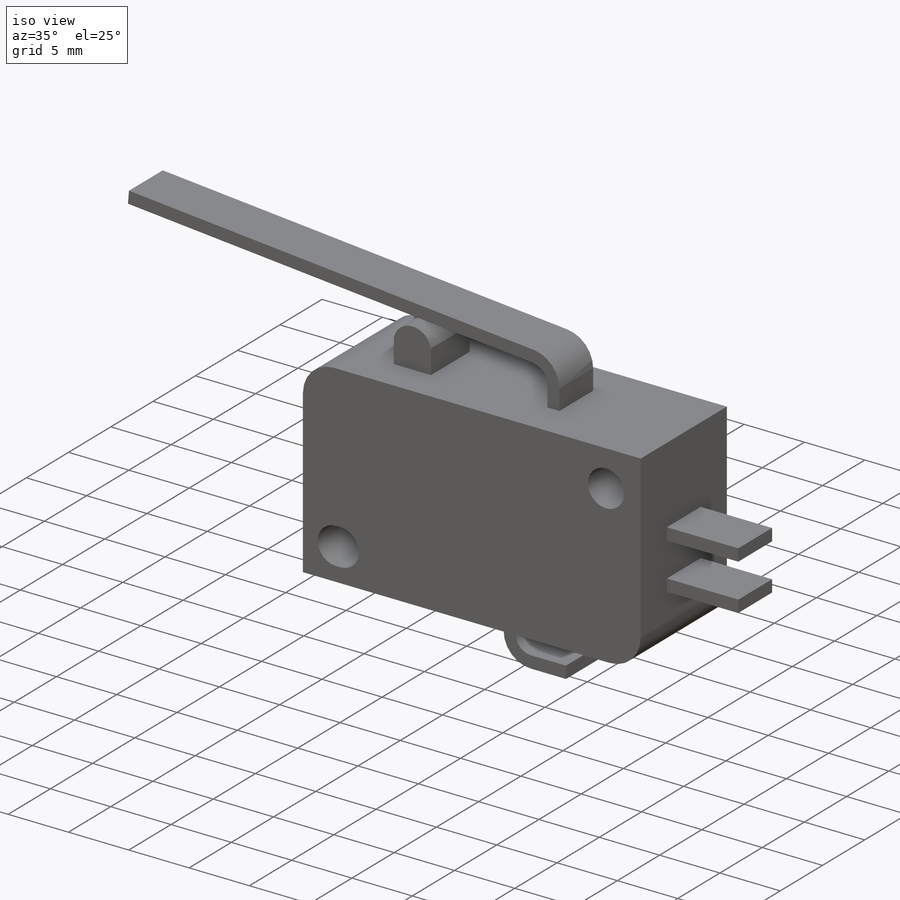
[diagram: iso view]
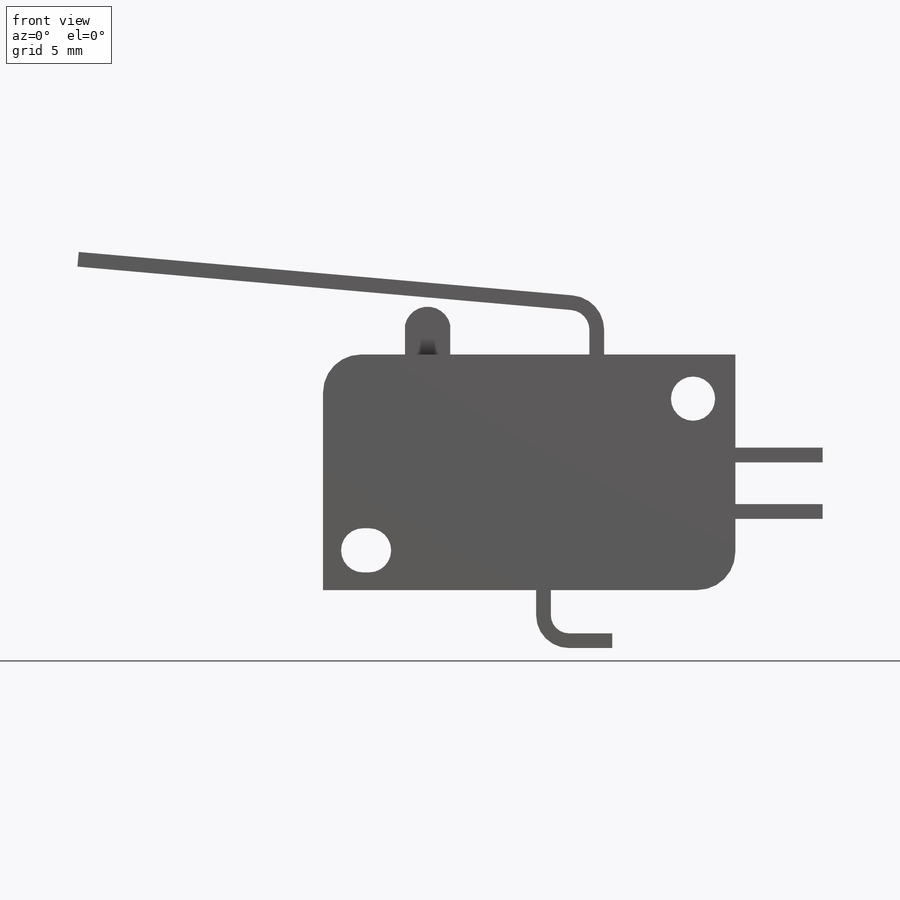
[diagram: front view]
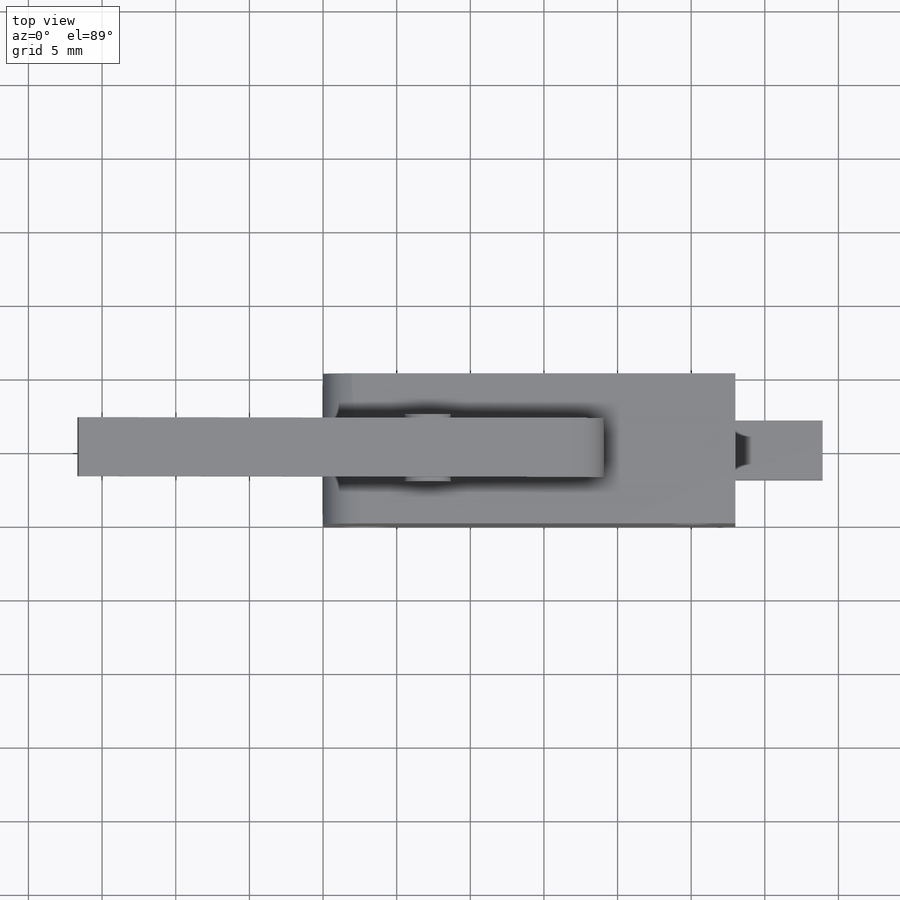
[diagram: top view]
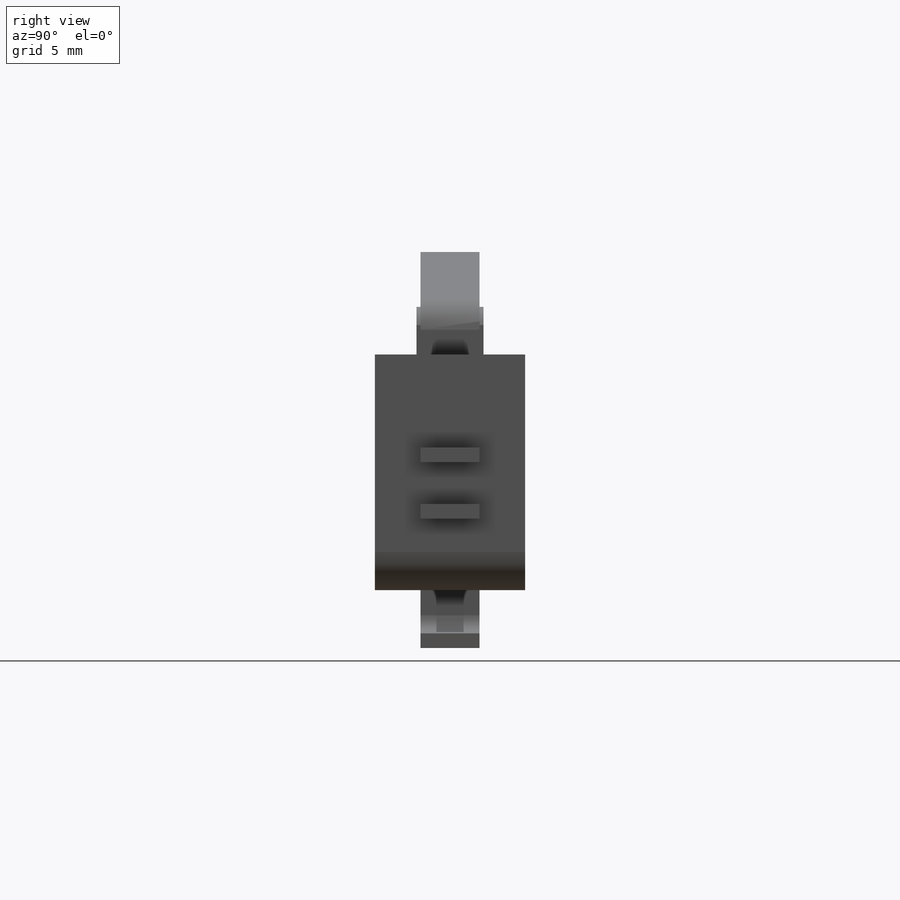
[diagram: right view]
SOLIDWORKS PART (.sldprt)
format: sldprt  version: not decoded by parser v0  size: 208,896 bytes
history: native  units: mm
features: sketch x5, extrude x3, material x1, cut_extrude x1 (+13 scaffold rows collapsed)
feature tree (23):
  scaffold x13  (default folders/planes/origin — collapsed)
  material  "Material <not specified>"
  sketch  "Sketch1"  dims[D1=28.0mm D2=16.0mm]
  extrude  "Boss-Extrude1"  Depth=10.2mm
  sketch  "Sketch2"  dims[c1.D1=3.0mm c1.D2=22.2mm c1.D3=10.3mm c2.D1=~1.354117mm c2.D2=22.2mm c2.D3=10.3mm c2.D4=0.4mm]
  cut_extrude  "Cut-Extrude1"  [1 undecoded]
  sketch  "Sketch3"  dims[c1.D1=~5.66893mm c1.D2=~3.327914mm c2.D1=~25.418208mm]
  extrude  "Boss-Extrude2"  Depth=2mm
  sketch  "Sketch4"  dims[D1=~0.095894mm]
  extrude  "Boss-Extrude3"  [1 undecoded]
  sketch  "Sketch5"  dims[c1.D1=50.6mm c1.D2=24.9mm c2.D1=4.0mm c2.D5=1.0mm c2.D6=10.0mm c2.D7=5.0mm]
decode coverage: 7 of 9 modeling features carry decoded parameters
note: ~ marks probable driven/reference dimensions
note: 2 parameter values undecoded
note: suppression state not decoded; provenance and decode notes live in map.json
